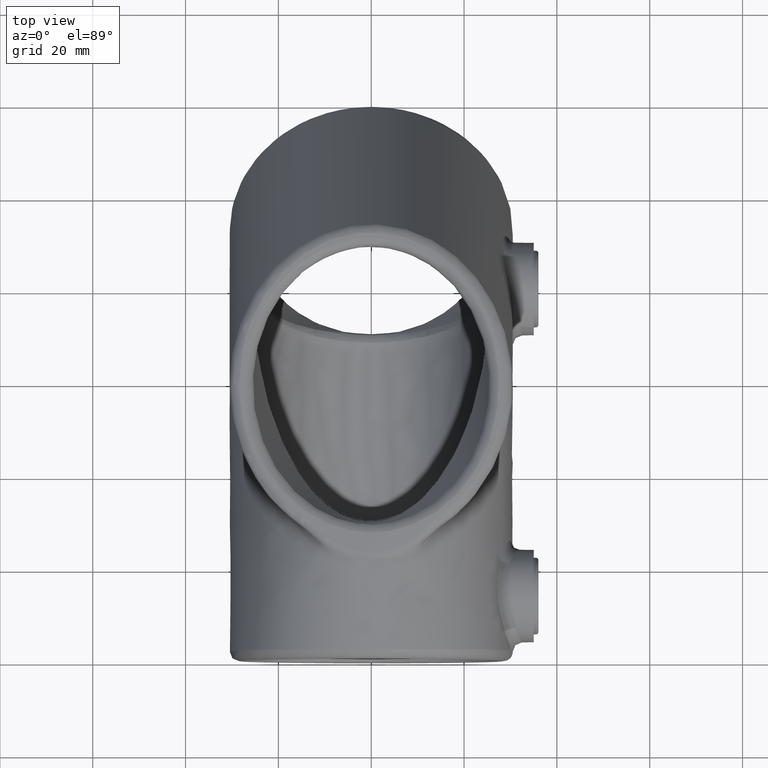
[diagram: clean part render]
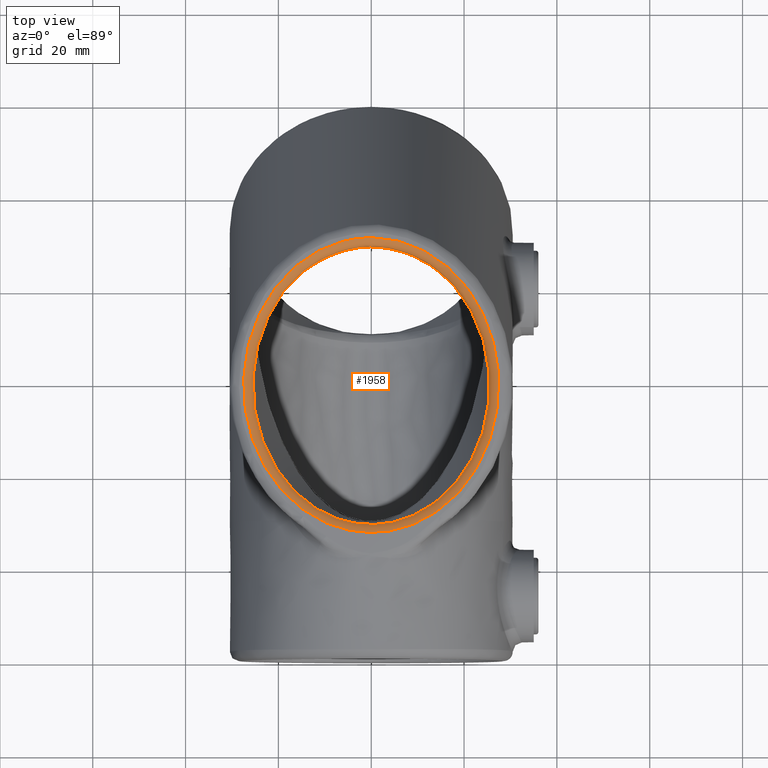
[diagram: same view with one face highlighted and labeled with its STEP entity id]
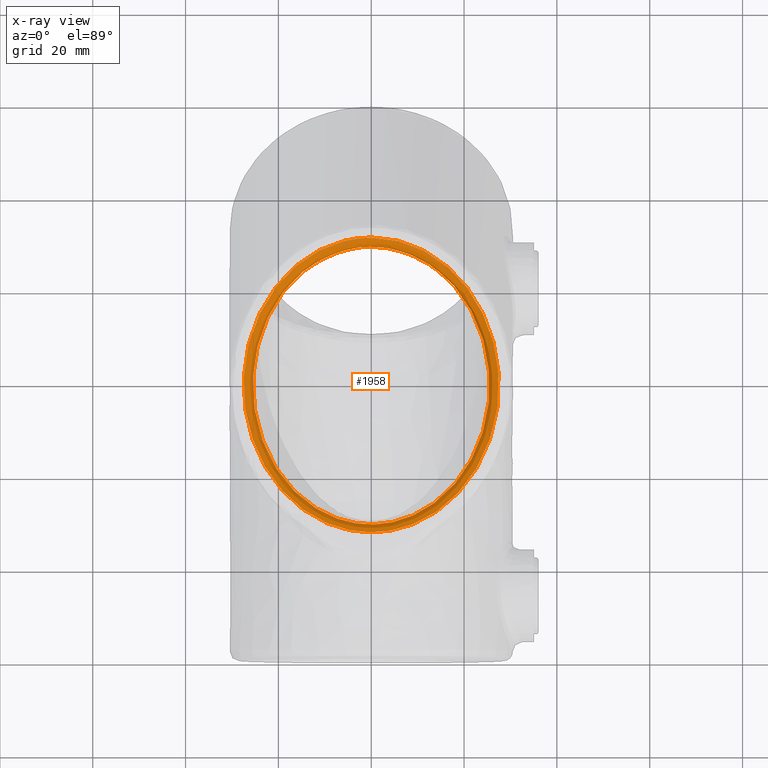
[diagram: x-ray of the same camera — body ghosted, the highlighted face saturated]
A machine part, top view. The second image highlights one B-rep face of the part: STEP entity #1958.
The next image is the same camera in x-ray: the body ghosted, the highlighted face saturated — about 0% of this face is hidden behind the body in this view.
In plain terms, the highlighted face is a freeform B-spline surface patch.
Its self-contained STEP definition (entity closure, byte-faithful):
#141 = CARTESIAN_POINT ( 'NONE',  ( -3.122849337825749433E-15, 28.91412011995177167, -1.000000000000017319 ) ) ;
#178 = CARTESIAN_POINT ( 'NONE',  ( 1.668971096851765479, 28.91412011995177522, -1.000000000000012879 ) ) ;
#202 = CARTESIAN_POINT ( 'NONE',  ( -22.92024049114473527, 45.63195376713254348, -1.556848793642921835 ) ) ;
#232 = ORIENTED_EDGE ( 'NONE', *, *, #1621, .F. ) ;
#234 = CARTESIAN_POINT ( 'NONE',  ( -1.712604328122768305, 28.33676985076215971, -3.903127820947815962E-15 ) ) ;
#255 = CARTESIAN_POINT ( 'NONE',  ( 6.112804511280184094, 86.42865672372977315, 2.168404344971008868E-14 ) ) ;
#266 = CARTESIAN_POINT ( 'NONE',  ( -24.47087517746098584, 49.21091966146155272, 2.222754243480547755E-13 ) ) ;
#297 = CARTESIAN_POINT ( 'NONE',  ( -25.56439616710522245, 57.00301860796106013, -1.734723475976807094E-15 ) ) ;
#317 = CARTESIAN_POINT ( 'NONE',  ( 12.77934219112677638, 84.99056009758599828, -2.867831599018243249 ) ) ;
#324 = CARTESIAN_POINT ( 'NONE',  ( -27.49999999999999645, 61.01464588898686969, -1.734723475976807094E-15 ) ) ;
#379 = CARTESIAN_POINT ( 'NONE',  ( 12.18665817477045188, 87.47811395940088630, -1.734723475976807094E-15 ) ) ;
#392 = CARTESIAN_POINT ( 'NONE',  ( -27.32273258325528786, 63.09290627082167191, -1.734723475976807094E-15 ) ) ;
#448 = CARTESIAN_POINT ( 'NONE',  ( -1.668971096851732394, 88.95854811567261322, -2.999999999999992450 ) ) ;
#474 = CARTESIAN_POINT ( 'NONE',  ( 22.92024049114782969, 72.24071446848329003, -2.443151206357191185 ) ) ;
#483 = CARTESIAN_POINT ( 'NONE',  ( -10.55562367113744671, 84.66135789842277859, 1.597744436266156873E-12 ) ) ;
#503 = CARTESIAN_POINT ( 'NONE',  ( 20.71813732405074404, 79.92040174654142959, -1.734723475976807094E-15 ) ) ;
#533 = CARTESIAN_POINT ( 'NONE',  ( 23.86536897296999271, 74.85000533252687660, -1.734723475976807094E-15 ) ) ;
#564 = CARTESIAN_POINT ( 'NONE',  ( 14.72485980152987928, 81.91886504723777307, -1.572444949309023543E-11 ) ) ;
#668 = CARTESIAN_POINT ( 'NONE',  ( 23.25593552771970352, 45.51769048947110008, 1.966435388305351620E-12 ) ) ;
#704 = CARTESIAN_POINT ( 'NONE',  ( 22.12970577493557300, 43.89068133298911079, -1.498849325839885616 ) ) ;
#750 = ORIENTED_EDGE ( 'NONE', *, *, #7263, .F. ) ;
#813 =( BOUNDED_CURVE ( )  B_SPLINE_CURVE ( 3, ( #1152, #6948, #7016, #3452, #1932, #8419, #5544 ),
 .UNSPECIFIED., .T., .T. ) 
 B_SPLINE_CURVE_WITH_KNOTS ( ( 4, 3, 4 ),
 ( 0.000000000000000000, 3.141592653589793116, 6.283185307179586232 ),
 .UNSPECIFIED. ) 
 CURVE ( )  GEOMETRIC_REPRESENTATION_ITEM ( )  RATIONAL_B_SPLINE_CURVE ( ( 1.000000000000000000, 0.3333333333333333703, 0.3333333333333333703, 1.000000000000000000, 0.3333333333333333703, 0.3333333333333333703, 1.000000000000000000 ) ) 
 REPRESENTATION_ITEM ( '' )  );
#868 = CARTESIAN_POINT ( 'NONE',  ( -27.49999999999999645, 56.85802234663762533, -1.734723475976807094E-15 ) ) ;
#893 = CARTESIAN_POINT ( 'NONE',  ( 3.599697077269617740, 27.38676009395372901, -1.734723475976807094E-15 ) ) ;
#928 = CARTESIAN_POINT ( 'NONE',  ( -24.68442454154497412, 51.15209736044060662, -1.740717431501660917 ) ) ;
#951 = CARTESIAN_POINT ( 'NONE',  ( 0.000000000000000000, 88.95854811567261322, -2.999999999999992450 ) ) ;
#961 = CARTESIAN_POINT ( 'NONE',  ( -11.58270027588904405, 31.47216771974544258, -2.017924791458244403E-13 ) ) ;
#989 = CARTESIAN_POINT ( 'NONE',  ( -26.09546787610236152, 48.70461277739439510, -1.734723475976807094E-15 ) ) ;
#1055 = CARTESIAN_POINT ( 'NONE',  ( -19.21136370048217401, 78.77581623951991219, -2.660826750588807688 ) ) ;
#1085 = CARTESIAN_POINT ( 'NONE',  ( -19.55792023931902435, 76.82271379902422836, -1.734723475976807292E-15 ) ) ;
#1152 = CARTESIAN_POINT ( 'NONE',  ( 0.000000000000000000, 90.69059892324149530, -1.734723475976807094E-15 ) ) ;
#1173 = CARTESIAN_POINT ( 'NONE',  ( 11.30035576206079284, 85.92128960441169738, -2.898832960435999251 ) ) ;
#1214 = CARTESIAN_POINT ( 'NONE',  ( -3.066783968423436146, 87.06927968849561239, 2.168404344971008868E-14 ) ) ;
#1264 = CARTESIAN_POINT ( 'NONE',  ( 19.21136370048069963, 78.77581623952217171, -2.660826750589736278 ) ) ;
#1275 = CARTESIAN_POINT ( 'NONE',  ( -11.98533070116530652, 83.85963811686492875, -2.085646427105824993E-12 ) ) ;
#1298 = CARTESIAN_POINT ( 'NONE',  ( 26.62045783892351025, 50.70300677828289793, -1.734723475976807094E-15 ) ) ;
#1330 = CARTESIAN_POINT ( 'NONE',  ( 11.58270027589071383, 31.47216771974227356, 2.011419578423329105E-13 ) ) ;
#1342 = CARTESIAN_POINT ( 'NONE',  ( -50.99999999999998579, 28.91412011995178588, -1.000000000000017542 ) ) ;
#1362 = CARTESIAN_POINT ( 'NONE',  ( 6.611705496627195089, 29.87433113738984503, -1.031983351311971386 ) ) ;
#1402 = CARTESIAN_POINT ( 'NONE',  ( 22.48916911786342254, 43.73598998115554082, 6.505213034913027590E-16 ) ) ;
#1436 = CARTESIAN_POINT ( 'NONE',  ( 19.59730601752361778, 38.82564364010487878, -2.145466636798874890E-13 ) ) ;
#1608 = CARTESIAN_POINT ( 'NONE',  ( -19.21136370048241204, 39.09685199610409256, -1.339173249410061217 ) ) ;
#1621 = EDGE_CURVE ( 'NONE', #5027, #5027, #1726, .T. ) ;
#1640 = CARTESIAN_POINT ( 'NONE',  ( -7.130270633617430853, 28.19767711928783882, -1.734723475976807094E-15 ) ) ;
#1669 = CARTESIAN_POINT ( 'NONE',  ( -26.62045783891879225, 50.70300677828278424, -1.734723475976807094E-15 ) ) ;
#1699 = CARTESIAN_POINT ( 'NONE',  ( 3.337900926195380258, 29.10764594979990605, -1.006446087881592621 ) ) ;
#1726 =( BOUNDED_CURVE ( )  B_SPLINE_CURVE ( 3, ( #5715, #2158, #1342, #141, #5201, #8080, #5853 ),
 .UNSPECIFIED., .T., .T. ) 
 B_SPLINE_CURVE_WITH_KNOTS ( ( 4, 3, 4 ),
 ( 0.000000000000000000, 3.141592653589793116, 6.283185307179586232 ),
 .UNSPECIFIED. ) 
 CURVE ( )  GEOMETRIC_REPRESENTATION_ITEM ( )  RATIONAL_B_SPLINE_CURVE ( ( 1.000000000000000000, 0.3333333333333333703, 0.3333333333333333703, 1.000000000000000000, 0.3333333333333333703, 0.3333333333333333703, 1.000000000000000000 ) ) 
 REPRESENTATION_ITEM ( '' )  );
#1731 = VERTEX_POINT ( 'NONE', #1751 ) ;
#1733 = CARTESIAN_POINT ( 'NONE',  ( 7.130270633617473486, 28.19767711928784948, -1.734723475976807094E-15 ) ) ;
#1751 = CARTESIAN_POINT ( 'NONE',  ( 0.000000000000000000, 90.69059892324149530, -1.734723475976807094E-15 ) ) ;
#1763 = CARTESIAN_POINT ( 'NONE',  ( -18.17273564121106944, 82.85957844011147699, -1.734723475976807094E-15 ) ) ;
#1793 = CARTESIAN_POINT ( 'NONE',  ( -16.77471927662545781, 84.18439220957230873, -1.734723475976807094E-15 ) ) ;
#1821 = CARTESIAN_POINT ( 'NONE',  ( -12.77934219112567682, 84.99056009758723462, -2.867831599018907163 ) ) ;
#1888 = CARTESIAN_POINT ( 'NONE',  ( -24.68442454154140009, 66.72057087520464336, -2.259282568498474308 ) ) ;
#1913 = CARTESIAN_POINT ( 'NONE',  ( 22.12970577493506141, 73.98198690263677690, -2.501150674161162879 ) ) ;
#1932 = CARTESIAN_POINT ( 'NONE',  ( -54.99999999999999289, 27.18206931238288604, -1.734723475976807094E-15 ) ) ;
#1958 = ADVANCED_FACE ( 'NONE', ( #7331, #7213 ), #6503, .T. ) ;
#1963 = CARTESIAN_POINT ( 'NONE',  ( 0.000000000000000000, 90.69059892324149530, -1.734723475976807094E-15 ) ) ;
#1985 = CARTESIAN_POINT ( 'NONE',  ( 25.33562475902083122, 62.86618415339412280, -2.130898075534350511 ) ) ;
#1996 = CARTESIAN_POINT ( 'NONE',  ( -7.612806789708509214, 85.95251035942183648, -1.600266624602610071E-12 ) ) ;
#2045 = CARTESIAN_POINT ( 'NONE',  ( 16.77471927662428186, 84.18439220957402824, -1.734723475976807094E-15 ) ) ;
#2077 = CARTESIAN_POINT ( 'NONE',  ( 16.85108214003319205, 36.31799403128017900, -1.246613188216018075 ) ) ;
#2158 = CARTESIAN_POINT ( 'NONE',  ( -50.99999999999998579, 88.95854811567262743, -2.999999999999986233 ) ) ;
#2180 = CARTESIAN_POINT ( 'NONE',  ( 18.17273564121107299, 35.01308979552041478, -1.734723475976807094E-15 ) ) ;
#2381 = CARTESIAN_POINT ( 'NONE',  ( 3.337900926197475915, 88.76502228582153009, -2.993553912114137017 ) ) ;
#2388 = CARTESIAN_POINT ( 'NONE',  ( -8.216499288558830827, 30.44747153781843707, -1.051073895415029824 ) ) ;
#2438 = CARTESIAN_POINT ( 'NONE',  ( 1.799870790722454039, 90.69059892324149530, -1.734723475976807094E-15 ) ) ;
#2449 = CARTESIAN_POINT ( 'NONE',  ( 1.712604328122774744, 28.33676985076215971, -3.903127820947815962E-15 ) ) ;
#2476 = CARTESIAN_POINT ( 'NONE',  ( -8.860930605309643937, 28.80388331205065811, -1.734723475976807094E-15 ) ) ;
#2502 = CARTESIAN_POINT ( 'NONE',  ( -15.55473969287407954, 82.80722540456720537, -2.795107625586168876 ) ) ;
#2561 = CARTESIAN_POINT ( 'NONE',  ( -25.43346141807392513, 60.93396966389911285, -1.734723475976806897E-15 ) ) ;
#2590 = CARTESIAN_POINT ( 'NONE',  ( -21.53063765513199712, 73.72692955452779984, -1.734723475976807094E-15 ) ) ;
#2609 = CARTESIAN_POINT ( 'NONE',  ( 8.216499288558784642, 87.42519669780691061, -2.948926104586560015 ) ) ;
#2701 = CARTESIAN_POINT ( 'NONE',  ( 27.32273258325774279, 63.09290627083612435, -1.734723475976807094E-15 ) ) ;
#2737 = CARTESIAN_POINT ( 'NONE',  ( 25.46405501459832976, 55.02421469461374670, -2.053027542856273538E-12 ) ) ;
#2772 = CARTESIAN_POINT ( 'NONE',  ( 24.19761566692995913, 49.26270666868865789, -1.677784341627468701 ) ) ;
#2872 = CARTESIAN_POINT ( 'NONE',  ( 23.86536897296638671, 43.02266290309538732, -1.734723475976807094E-15 ) ) ;
#2905 = CARTESIAN_POINT ( 'NONE',  ( 13.09274336967868990, 32.43481266052643264, -1.734723475976806700E-15 ) ) ;
#3101 = CARTESIAN_POINT ( 'NONE',  ( -16.85108214003153293, 36.31799403127875081, -1.246613188216863177 ) ) ;
#3118 = CARTESIAN_POINT ( 'NONE',  ( 0.000000000000000000, 88.95854811567262743, -2.999999999999986233 ) ) ;
#3130 = CARTESIAN_POINT ( 'NONE',  ( -3.599697077269575107, 27.38676009395371835, -1.734723475976807094E-15 ) ) ;
#3165 = CARTESIAN_POINT ( 'NONE',  ( -20.27524445249429874, 40.62309004952449243, -1.390010208121684521 ) ) ;
#3195 = CARTESIAN_POINT ( 'NONE',  ( -24.91272782098454286, 51.13122579947479096, -6.411232997669844787E-12 ) ) ;
#3224 = CARTESIAN_POINT ( 'NONE',  ( -22.12970577493091895, 73.98198690264507604, -2.501150674163131082 ) ) ;
#3281 = CARTESIAN_POINT ( 'NONE',  ( -25.33562475902335365, 62.86618415337910903, -2.130898075533781633 ) ) ;
#3338 = CARTESIAN_POINT ( 'NONE',  ( 7.612806789710123034, 85.95251035943199724, 4.026687413628615852E-13 ) ) ;
#3349 = CARTESIAN_POINT ( 'NONE',  ( -22.39588507167545472, 72.06197885365793354, -3.607829451369905679E-12 ) ) ;
#3406 = CARTESIAN_POINT ( 'NONE',  ( 26.09546787610007001, 69.16805545823081047, -1.734723475976807094E-15 ) ) ;
#3438 = CARTESIAN_POINT ( 'NONE',  ( 25.56439616710167329, 57.00301860796841424, -1.734723475976807094E-15 ) ) ;
#3450 = CARTESIAN_POINT ( 'NONE',  ( -6.112804511281577646, 86.42865672373211794, 2.168404344971007921E-14 ) ) ;
#3452 = CARTESIAN_POINT ( 'NONE',  ( 3.367778697655220913E-15, 27.18206931238289314, -1.734723475976807094E-15 ) ) ;
#3469 = CARTESIAN_POINT ( 'NONE',  ( 25.49999999999999645, 56.97138480688018802, -1.934550153061095568 ) ) ;
#3481 = CARTESIAN_POINT ( 'NONE',  ( -6.611705496627155121, 87.99833709823430183, -2.968016648687586745 ) ) ;
#3536 = CARTESIAN_POINT ( 'NONE',  ( 8.216499288560859426, 30.44747153782076765, -1.051073895417397264 ) ) ;
#3572 = CARTESIAN_POINT ( 'NONE',  ( 26.09546787610006291, 48.70461277739355666, -1.734723475976807094E-15 ) ) ;
#3606 = CARTESIAN_POINT ( 'NONE',  ( 15.55473969287127467, 35.06544283105366588, -1.204892374411505873 ) ) ;
#3635 = CARTESIAN_POINT ( 'NONE',  ( 11.30035576205878733, 31.95137863120947586, -1.101167039560053906 ) ) ;
#3801 = CARTESIAN_POINT ( 'NONE',  ( -17.22422078823975156, 35.97376369326601520, 2.074735470027089835E-13 ) ) ;
#3861 = CARTESIAN_POINT ( 'NONE',  ( -12.77934219112616709, 32.88210813803932098, -1.132168400984181700 ) ) ;
#3884 = CARTESIAN_POINT ( 'NONE',  ( 0.000000000000000000, 90.69059892324149530, -1.734723475976807094E-15 ) ) ;
#3894 = CARTESIAN_POINT ( 'NONE',  ( -21.86545970366982417, 39.56655673789460081, -1.734723475976807094E-15 ) ) ;
#3928 = CARTESIAN_POINT ( 'NONE',  ( -25.46405501461146770, 55.02421469461822312, 6.598421510883109626E-12 ) ) ;
#4039 = CARTESIAN_POINT ( 'NONE',  ( -20.71813732404914887, 79.92040174653753581, -1.734723475976807094E-15 ) ) ;
#4094 = CARTESIAN_POINT ( 'NONE',  ( 18.17273564120936769, 82.85957844010775375, -1.734723475976807094E-15 ) ) ;
#4103 = CARTESIAN_POINT ( 'NONE',  ( -1.538071403154100070, 87.22649730810377378, -8.673617379884035472E-16 ) ) ;
#4124 = CARTESIAN_POINT ( 'NONE',  ( 24.68442454154391541, 66.72057087518970775, -2.259282568497908095 ) ) ;
#4154 = CARTESIAN_POINT ( 'NONE',  ( 16.85108214003322757, 81.55467420434381154, -2.753386811783348431 ) ) ;
#4162 = EDGE_LOOP ( 'NONE', ( #232 ) ) ;
#4192 = CARTESIAN_POINT ( 'NONE',  ( 27.32273258325415810, 54.77976196478832094, -1.734723475976807094E-15 ) ) ;
#4256 = CARTESIAN_POINT ( 'NONE',  ( 8.860930605309718544, 28.80388331205388752, -1.734723475976807094E-15 ) ) ;
#4292 = CARTESIAN_POINT ( 'NONE',  ( 20.71813732404900676, 37.95226648907915745, -1.734723475976807094E-15 ) ) ;
#4326 = CARTESIAN_POINT ( 'NONE',  ( 16.77471927662593387, 33.68827602605038152, -1.734723475976807094E-15 ) ) ;
#4525 = CARTESIAN_POINT ( 'NONE',  ( -23.86536897297013127, 43.02266290309271568, -1.734723475976807094E-15 ) ) ;
#4547 = CARTESIAN_POINT ( 'NONE',  ( 3.599697077270103129, 90.48590814167253882, -1.734723475976807094E-15 ) ) ;
#4555 = CARTESIAN_POINT ( 'NONE',  ( -22.12970577493547708, 43.89068133298849972, -1.498849325839125335 ) ) ;
#4583 = CARTESIAN_POINT ( 'NONE',  ( -15.55473969287350755, 35.06544283105495907, -1.204892374410749145 ) ) ;
#4607 = CARTESIAN_POINT ( 'NONE',  ( 6.611705496625062572, 87.99833709823751349, -2.968016648692308745 ) ) ;
#4616 = CARTESIAN_POINT ( 'NONE',  ( -24.19761566693086507, 49.26270666869085346, -1.677784341626909148 ) ) ;
#4638 = CARTESIAN_POINT ( 'NONE',  ( 1.668971096851730396, 88.95854811567261322, -2.999999999999992450 ) ) ;
#4649 = CARTESIAN_POINT ( 'NONE',  ( -1.799870790722484903, 27.18206931238289314, -1.734723475976807094E-15 ) ) ;
#4681 = CARTESIAN_POINT ( 'NONE',  ( -21.86545970366984193, 78.30611149772283852, -1.734723475976807094E-15 ) ) ;
#4714 = CARTESIAN_POINT ( 'NONE',  ( -26.09546787610238994, 69.16805545822991519, -1.734723475976807094E-15 ) ) ;
#4824 = CARTESIAN_POINT ( 'NONE',  ( 18.44435372331642498, 78.24010671459004129, -4.158781702235394565E-13 ) ) ;
#4883 = CARTESIAN_POINT ( 'NONE',  ( 16.02792506693115371, 80.79646666412945422, 4.275034450897332188E-13 ) ) ;
#4918 = CARTESIAN_POINT ( 'NONE',  ( 24.91272782099627037, 51.13122579947191326, 1.984451442584813837E-12 ) ) ;
#4927 = CARTESIAN_POINT ( 'NONE',  ( 0.000000000000000000, 87.22649730810377378, -8.673617379884035472E-16 ) ) ;
#5011 = CARTESIAN_POINT ( 'NONE',  ( 17.22422078824686764, 35.97376369326651968, 2.070398661336331946E-13 ) ) ;
#5027 = VERTEX_POINT ( 'NONE', #3118 ) ;
#5048 = CARTESIAN_POINT ( 'NONE',  ( 19.21136370048069963, 39.09685199610259332, -1.339173249410904099 ) ) ;
#5201 = CARTESIAN_POINT ( 'NONE',  ( 50.99999999999998579, 28.91412011995176456, -1.000000000000017097 ) ) ;
#5237 = CARTESIAN_POINT ( 'NONE',  ( -3.337900926194585338, 29.10764594979976749, -1.006446087881666118 ) ) ;
#5272 = CARTESIAN_POINT ( 'NONE',  ( -1.668971096851759484, 28.91412011995177522, -1.000000000000012879 ) ) ;
#5328 = CARTESIAN_POINT ( 'NONE',  ( -24.71790641201837602, 44.86439336228661290, -1.734723475976807094E-15 ) ) ;
#5391 = CARTESIAN_POINT ( 'NONE',  ( -20.27524445249889240, 77.24957818609067317, -2.609989791876066167 ) ) ;
#5417 = CARTESIAN_POINT ( 'NONE',  ( -25.49999999999999289, 60.90128342873704526, -2.065449846938911094 ) ) ;
#5447 = CARTESIAN_POINT ( 'NONE',  ( -22.92024049114696993, 72.24071446848549272, -2.443151206356843463 ) ) ;
#5469 = CARTESIAN_POINT ( 'NONE',  ( 7.130270633616949461, 89.67499111633466669, -1.734723475976807094E-15 ) ) ;
#5508 = CARTESIAN_POINT ( 'NONE',  ( -7.130270633616706988, 89.67499111633654252, -1.734723475976807094E-15 ) ) ;
#5539 = CARTESIAN_POINT ( 'NONE',  ( -8.860930605309716768, 89.06878492357371613, -1.734723475976807094E-15 ) ) ;
#5544 = CARTESIAN_POINT ( 'NONE',  ( 0.000000000000000000, 90.69059892324149530, -1.734723475976807094E-15 ) ) ;
#5563 = CARTESIAN_POINT ( 'NONE',  ( 24.39061213502059644, 66.69314496092601985, -4.111431922471465864E-12 ) ) ;
#5596 = CARTESIAN_POINT ( 'NONE',  ( 27.49999999999999645, 56.85802234663758270, -1.734723475976807094E-15 ) ) ;
#5632 = CARTESIAN_POINT ( 'NONE',  ( 15.55473969287294089, 82.80722540456848435, -2.795107625586835454 ) ) ;
#5639 = CARTESIAN_POINT ( 'NONE',  ( -3.337900926195451312, 88.76502228582474174, -2.993553912118859017 ) ) ;
#5664 = CARTESIAN_POINT ( 'NONE',  ( 24.19761566692779908, 68.60996156694201886, -2.322215658372984493 ) ) ;
#5703 = CARTESIAN_POINT ( 'NONE',  ( 20.65830675088095703, 40.39496464895773897, 6.505213034913025618E-16 ) ) ;
#5715 = CARTESIAN_POINT ( 'NONE',  ( 0.000000000000000000, 88.95854811567262743, -2.999999999999986233 ) ) ;
#5776 = CARTESIAN_POINT ( 'NONE',  ( 20.27524445249425611, 40.62309004952396663, -1.390010208120926238 ) ) ;
#5853 = CARTESIAN_POINT ( 'NONE',  ( 0.000000000000000000, 88.95854811567262743, -2.999999999999986233 ) ) ;
#5948 = CARTESIAN_POINT ( 'NONE',  ( -15.91202073525645488, 34.68135606284801753, -4.140374415885292576E-13 ) ) ;
#5978 = CARTESIAN_POINT ( 'NONE',  ( -6.611705496627910961, 29.87433113738996582, -1.031983351311897223 ) ) ;
#6008 = CARTESIAN_POINT ( 'NONE',  ( -3.428749047321534515, 28.53737549944743535, -1.976913605271462618E-13 ) ) ;
#6039 = CARTESIAN_POINT ( 'NONE',  ( -18.17273564121110141, 35.01308979551371436, -1.734723475976807094E-15 ) ) ;
#6076 = CARTESIAN_POINT ( 'NONE',  ( -25.50000000000000000, 56.97138480688744266, -1.934550153061097788 ) ) ;
#6253 = CARTESIAN_POINT ( 'NONE',  ( 25.43346141807758443, 60.93396966389207137, -1.734723475976807094E-15 ) ) ;
#6266 = CARTESIAN_POINT ( 'NONE',  ( -3.599697077270417989, 90.48590814167066299, -1.734723475976807094E-15 ) ) ;
#6321 = CARTESIAN_POINT ( 'NONE',  ( 21.53063765513058314, 73.72692955453295838, -3.826022676697116343E-12 ) ) ;
#6331 = CARTESIAN_POINT ( 'NONE',  ( -8.216499288562328474, 87.42519669780338631, -2.948926104583361685 ) ) ;
#6350 = CARTESIAN_POINT ( 'NONE',  ( 25.19115420255857885, 62.88822403295205987, 3.964353405055799100E-12 ) ) ;
#6360 = CARTESIAN_POINT ( 'NONE',  ( -11.30035576205731473, 85.92128960441520746, -2.898832960439197137 ) ) ;
#6449 = CARTESIAN_POINT ( 'NONE',  ( 6.784812326538583349, 29.32838329580176406, 1.952799647814402190E-13 ) ) ;
#6503 =( BOUNDED_SURFACE ( )  B_SPLINE_SURFACE ( 3, 2, ( 
 ( #951, #7475, #3884 ),
 ( #4638, #8872, #2438 ),
 ( #2381, #8901, #4547 ),
 ( #4607, #255, #5469 ),
 ( #2609, #3338, #9092 ),
 ( #1173, #8968, #379 ),
 ( #317, #8474, #9198 ),
 ( #5632, #564, #2045 ),
 ( #4154, #4883, #4094 ),
 ( #1264, #4824, #503 ),
 ( #7032, #6968, #9130 ),
 ( #1913, #6321, #533 ),
 ( #474, #8539, #8503 ),
 ( #5664, #7726, #3406 ),
 ( #4124, #5563, #9257 ),
 ( #1985, #6350, #2701 ),
 ( #7790, #6253, #7760 ),
 ( #3469, #3438, #5596 ),
 ( #7064, #2737, #4192 ),
 ( #9227, #4918, #1298 ),
 ( #2772, #7917, #3572 ),
 ( #7192, #668, #7224 ),
 ( #704, #1402, #2872 ),
 ( #5776, #5703, #7889 ),
 ( #5048, #1436, #4292 ),
 ( #2077, #5011, #2180 ),
 ( #3606, #8633, #4326 ),
 ( #9359, #2905, #7947 ),
 ( #3635, #1330, #7124 ),
 ( #3536, #8568, #4256 ),
 ( #1362, #6449, #1733 ),
 ( #1699, #7489, #893 ),
 ( #178, #2449, #6792 ),
 ( #5272, #234, #4649 ),
 ( #5237, #6008, #3130 ),
 ( #5978, #6676, #1640 ),
 ( #2388, #8176, #2476 ),
 ( #6702, #961, #7392 ),
 ( #3861, #7420, #8881 ),
 ( #4583, #5948, #8122 ),
 ( #3101, #3801, #6039 ),
 ( #1608, #8820, #6764 ),
 ( #3165, #8147, #3894 ),
 ( #4555, #7528, #4525 ),
 ( #202, #8914, #5328 ),
 ( #4616, #266, #989 ),
 ( #928, #3195, #1669 ),
 ( #8230, #3928, #8947 ),
 ( #6076, #297, #868 ),
 ( #5417, #2561, #324 ),
 ( #3281, #6941, #392 ),
 ( #1888, #7643, #7672 ),
 ( #8262, #6915, #4714 ),
 ( #5447, #3349, #8325 ),
 ( #3224, #2590, #8354 ),
 ( #5391, #1085, #4681 ),
 ( #1055, #9105, #4039 ),
 ( #6822, #9066, #1763 ),
 ( #2502, #8980, #1793 ),
 ( #1821, #1275, #7076 ),
 ( #6360, #483, #7770 ),
 ( #6331, #1996, #5539 ),
 ( #3481, #3450, #5508 ),
 ( #5639, #1214, #6266 ),
 ( #448, #4103, #7043 ),
 ( #8549, #4927, #1963 ) ),
 .UNSPECIFIED., .T., .F., .F. ) 
 B_SPLINE_SURFACE_WITH_KNOTS ( ( 4, 2, 2, 2, 2, 2, 2, 2, 2, 2, 2, 2, 2, 2, 2, 2, 2, 2, 2, 2, 2, 2, 2, 2, 2, 2, 2, 2, 2, 2, 2, 2, 4 ),
 ( 3, 3 ),
 ( 0.000000000000000000, 0.1963495408493620697, 0.3926990816987241395, 0.5890486225480862092, 0.7853981633974482790, 0.9817477042468103487, 1.178097245096172418, 1.374446785945534488, 1.570796326794896558, 1.767145867644258628, 1.963495408493620697, 2.159844949342982545, 2.356194490192344837, 2.552544031041707129, 2.748893571891068976, 2.945243112740430824, 3.141592653589793116, 3.337942194439155408, 3.534291735288517255, 3.730641276137879103, 3.926990816987241395, 4.123340357836603687, 4.319689898685965090, 4.516039439535327382, 4.712388980384689674, 4.908738521234051966, 5.105088062083414258, 5.301437602932775661, 5.497787143782137953, 5.694136684631500245, 5.890486225480861648, 6.086835766330223940, 6.283185307179586232 ),
 ( 0.000000000000000000, 1.000000000000000000 ),
 .UNSPECIFIED. ) 
 GEOMETRIC_REPRESENTATION_ITEM ( )  RATIONAL_B_SPLINE_SURFACE ( (
 ( 1.000000000000000000, 0.5000000000000025535, 1.000000000000000000),
 ( 1.000000000000000000, 0.5000000000000025535, 1.000000000000000000),
 ( 1.000000000000000000, 0.5016188989069439996, 1.000000000000000000),
 ( 1.000000000000000000, 0.5079427483423754053, 1.000000000000000000),
 ( 1.000000000000000000, 0.5126450122641416085, 1.000000000000000000),
 ( 1.000000000000000000, 0.5247172520816941743, 1.000000000000000000),
 ( 1.000000000000000000, 0.5320834700477328205, 1.000000000000000000),
 ( 1.000000000000000000, 0.5489023706076607834, 1.000000000000000000),
 ( 1.000000000000000000, 0.5583518928191989472, 1.000000000000000000),
 ( 1.000000000000000000, 0.5787027315561913410, 1.000000000000000000),
 ( 1.000000000000000000, 0.5896021494677878838, 1.000000000000000000),
 ( 1.000000000000000000, 0.6122421694772253176, 1.000000000000000000),
 ( 1.000000000000000000, 0.6239819672171398324, 1.000000000000000000),
 ( 1.000000000000000000, 0.6477556502318817522, 1.000000000000000000),
 ( 1.000000000000000000, 0.6597893956506105662, 1.000000000000000000),
 ( 1.000000000000000000, 0.6836798738095705152, 1.000000000000000000),
 ( 1.000000000000000000, 0.6955367735365753923, 1.000000000000000000),
 ( 1.000000000000000000, 0.7186767888365195311, 1.000000000000000000),
 ( 1.000000000000000000, 0.7299601663650967520, 1.000000000000000000),
 ( 1.000000000000000000, 0.7516235545282341501, 1.000000000000000000),
 ( 1.000000000000000000, 0.7620038215747242383, 1.000000000000000000),
 ( 1.000000000000000000, 0.7815905008963979217, 1.000000000000000000),
 ( 1.000000000000000000, 0.7907971268463090952, 1.000000000000000000),
 ( 1.000000000000000000, 0.8078179716122265708, 1.000000000000000000),
 ( 1.000000000000000000, 0.8156323541561385504, 1.000000000000000000),
 ( 1.000000000000000000, 0.8296964218599318652, 1.000000000000000000),
 ( 1.000000000000000000, 0.8359462253278491239, 1.000000000000000000),
 ( 1.000000000000000000, 0.8467508990241647826, 1.000000000000000000),
 ( 1.000000000000000000, 0.8513058497094102561, 1.000000000000000000),
 ( 1.000000000000000000, 0.8586296848974573903, 1.000000000000000000),
 ( 1.000000000000000000, 0.8613986189280670169, 1.000000000000000000),
 ( 1.000000000000000000, 0.8650964666146691018, 1.000000000000000000),
 ( 1.000000000000000000, 0.8660254037844373753, 1.000000000000000000),
 ( 1.000000000000000000, 0.8660254037844373753, 1.000000000000000000),
 ( 1.000000000000000000, 0.8650964666147697990, 1.000000000000000000),
 ( 1.000000000000000000, 0.8613986189279665417, 1.000000000000000000),
 ( 1.000000000000000000, 0.8586296848974578344, 1.000000000000000000),
 ( 1.000000000000000000, 0.8513058497094107002, 1.000000000000000000),
 ( 1.000000000000000000, 0.8467508990240595335, 1.000000000000000000),
 ( 1.000000000000000000, 0.8359462253279538180, 1.000000000000000000),
 ( 1.000000000000000000, 0.8296964218596080132, 1.000000000000000000),
 ( 1.000000000000000000, 0.8156323541564621804, 1.000000000000000000),
 ( 1.000000000000000000, 0.8078179716123333742, 1.000000000000000000),
 ( 1.000000000000000000, 0.7907971268462031800, 1.000000000000000000),
 ( 1.000000000000000000, 0.7815905008967836132, 1.000000000000000000),
 ( 1.000000000000000000, 0.7620038215743395460, 1.000000000000000000),
 ( 1.000000000000000000, 0.7516235545296506837, 1.000000000000000000),
 ( 1.000000000000000000, 0.7299601663636799964, 1.000000000000000000),
 ( 1.000000000000000000, 0.7186767888364038459, 1.000000000000000000),
 ( 1.000000000000000000, 0.6955367735366904114, 1.000000000000000000),
 ( 1.000000000000000000, 0.6836798738104056250, 1.000000000000000000),
 ( 1.000000000000000000, 0.6597893956497761225, 1.000000000000000000),
 ( 1.000000000000000000, 0.6477556502311202502, 1.000000000000000000),
 ( 1.000000000000000000, 0.6239819672179017784, 1.000000000000000000),
 ( 1.000000000000000000, 0.6122421694764839106, 1.000000000000000000),
 ( 1.000000000000000000, 0.5896021494685297348, 1.000000000000000000),
 ( 1.000000000000000000, 0.5787027315561242835, 1.000000000000000000),
 ( 1.000000000000000000, 0.5583518928192660047, 1.000000000000000000),
 ( 1.000000000000000000, 0.5489023706044148243, 1.000000000000000000),
 ( 1.000000000000000000, 0.5320834700509864401, 1.000000000000000000),
 ( 1.000000000000000000, 0.5247172520815143182, 1.000000000000000000),
 ( 1.000000000000000000, 0.5126450122643143592, 1.000000000000000000),
 ( 1.000000000000000000, 0.5079427483437687352, 1.000000000000000000),
 ( 1.000000000000000000, 0.5016188989055511138, 1.000000000000000000),
 ( 1.000000000000000000, 0.5000000000000025535, 1.000000000000000000),
 ( 1.000000000000000000, 0.5000000000000025535, 1.000000000000000000) ) ) 
 REPRESENTATION_ITEM ( '' )  SURFACE ( )  );
#6676 = CARTESIAN_POINT ( 'NONE',  ( -6.784812326539527483, 29.32838329580179959, 1.950631243469661150E-13 ) ) ;
#6702 = CARTESIAN_POINT ( 'NONE',  ( -11.30035576206067738, 31.95137863121173893, -1.101167039562418237 ) ) ;
#6764 = CARTESIAN_POINT ( 'NONE',  ( -20.71813732404903519, 37.95226648908594314, -1.734723475976807094E-15 ) ) ;
#6792 = CARTESIAN_POINT ( 'NONE',  ( 1.799870790722491787, 27.18206931238289314, -1.734723475976807094E-15 ) ) ;
#6822 = CARTESIAN_POINT ( 'NONE',  ( -16.85108214003184202, 81.55467420434594317, -2.753386811784273913 ) ) ;
#6915 = CARTESIAN_POINT ( 'NONE',  ( -23.82091207487885498, 68.54084928923978737, 3.472010478873882837E-12 ) ) ;
#6941 = CARTESIAN_POINT ( 'NONE',  ( -25.19115420255886661, 62.88822403293919194, -1.734723475976807094E-15 ) ) ;
#6948 = CARTESIAN_POINT ( 'NONE',  ( 54.99999999999999289, 90.69059892324149530, -1.734723475976807094E-15 ) ) ;
#6968 = CARTESIAN_POINT ( 'NONE',  ( 19.55792023931800827, 76.82271379902280728, 3.969401330385454281E-12 ) ) ;
#7016 = CARTESIAN_POINT ( 'NONE',  ( 54.99999999999999289, 27.18206931238290736, -1.734723475976807094E-15 ) ) ;
#7032 = CARTESIAN_POINT ( 'NONE',  ( 20.27524445249474638, 77.24957818609898652, -2.609989791878035703 ) ) ;
#7043 = CARTESIAN_POINT ( 'NONE',  ( -1.799870790722455816, 90.69059892324149530, -1.734723475976807094E-15 ) ) ;
#7064 = CARTESIAN_POINT ( 'NONE',  ( 25.33562475902058608, 55.00648408222973273, -1.869101924467109654 ) ) ;
#7076 = CARTESIAN_POINT ( 'NONE',  ( -13.78164353945270726, 86.49368851949735415, -1.734723475976807094E-15 ) ) ;
#7124 = CARTESIAN_POINT ( 'NONE',  ( 12.18665817477029201, 30.39455427621127726, -1.734723475976807094E-15 ) ) ;
#7142 = EDGE_LOOP ( 'NONE', ( #750 ) ) ;
#7192 = CARTESIAN_POINT ( 'NONE',  ( 22.92024049114564832, 45.63195376713477458, -1.556848793642363837 ) ) ;
#7213 = FACE_OUTER_BOUND ( 'NONE', #4162, .T. ) ;
#7224 = CARTESIAN_POINT ( 'NONE',  ( 24.71790641202069594, 44.86439336228750108, -1.734723475976807094E-15 ) ) ;
#7263 = EDGE_CURVE ( 'NONE', #1731, #1731, #813, .T. ) ;
#7331 = FACE_OUTER_BOUND ( 'NONE', #7142, .T. ) ;
#7392 = CARTESIAN_POINT ( 'NONE',  ( -12.18665817477021740, 30.39455427621443917, -1.734723475976807094E-15 ) ) ;
#7420 = CARTESIAN_POINT ( 'NONE',  ( -13.09274336967522423, 32.43481266052628342, 4.057378615214328891E-13 ) ) ;
#7475 = CARTESIAN_POINT ( 'NONE',  ( 0.000000000000000000, 87.22649730810377378, -8.673617379884035472E-16 ) ) ;
#7489 = CARTESIAN_POINT ( 'NONE',  ( 3.428749047322165122, 28.53737549944740337, -1.974745200926719054E-13 ) ) ;
#7528 = CARTESIAN_POINT ( 'NONE',  ( -22.48916911786499284, 43.73598998115384973, -1.951563910473907981E-15 ) ) ;
#7643 = CARTESIAN_POINT ( 'NONE',  ( -24.39061213501929615, 66.69314496094406763, -1.734723475976807094E-15 ) ) ;
#7672 = CARTESIAN_POINT ( 'NONE',  ( -26.62045783892239115, 67.16966145735590032, -1.734723475976807094E-15 ) ) ;
#7726 = CARTESIAN_POINT ( 'NONE',  ( 23.82091207487590623, 68.54084928924378062, -1.734723475976807094E-15 ) ) ;
#7760 = CARTESIAN_POINT ( 'NONE',  ( 27.49999999999999645, 61.01464588898681285, -1.734723475976807094E-15 ) ) ;
#7770 = CARTESIAN_POINT ( 'NONE',  ( -12.18665817477029023, 87.47811395940993862, -1.734723475976807094E-15 ) ) ;
#7790 = CARTESIAN_POINT ( 'NONE',  ( 25.49999999999999645, 60.90128342874420753, -2.065449846938908873 ) ) ;
#7889 = CARTESIAN_POINT ( 'NONE',  ( 21.86545970367361846, 39.56655673789201444, -1.734723475976807094E-15 ) ) ;
#7917 = CARTESIAN_POINT ( 'NONE',  ( 24.47087517746135532, 49.21091966146640573, -2.015223968691225787E-12 ) ) ;
#7947 = CARTESIAN_POINT ( 'NONE',  ( 13.78164353945222231, 31.37897971612872183, -1.734723475976807094E-15 ) ) ;
#8080 = CARTESIAN_POINT ( 'NONE',  ( 50.99999999999998579, 88.95854811567262743, -2.999999999999986233 ) ) ;
#8122 = CARTESIAN_POINT ( 'NONE',  ( -16.77471927662753615, 33.68827602605035310, -1.734723475976807094E-15 ) ) ;
#8147 = CARTESIAN_POINT ( 'NONE',  ( -20.65830675087961055, 40.39496464895973560, -1.951563910473907981E-15 ) ) ;
#8176 = CARTESIAN_POINT ( 'NONE',  ( -8.431329526124724083, 29.92206401197272214, 1.979120977200642893E-13 ) ) ;
#8230 = CARTESIAN_POINT ( 'NONE',  ( -25.33562475901976185, 55.00648408222431129, -1.869101924466089359 ) ) ;
#8262 = CARTESIAN_POINT ( 'NONE',  ( -24.19761566692867660, 68.60996156693974513, -2.322215658373329550 ) ) ;
#8325 = CARTESIAN_POINT ( 'NONE',  ( -24.71790641201840444, 73.00827487333771160, -1.734723475976807094E-15 ) ) ;
#8354 = CARTESIAN_POINT ( 'NONE',  ( -23.86536897297014548, 74.85000533253857213, -1.734723475976807094E-15 ) ) ;
#8419 = CARTESIAN_POINT ( 'NONE',  ( -54.99999999999999289, 90.69059892324149530, -1.734723475976807094E-15 ) ) ;
#8474 = CARTESIAN_POINT ( 'NONE',  ( 11.98533070113630572, 83.85963811687165048, 1.625321024559680341E-11 ) ) ;
#8503 = CARTESIAN_POINT ( 'NONE',  ( 24.71790641202070660, 73.00827487333687316, -1.734723475976807094E-15 ) ) ;
#8539 = CARTESIAN_POINT ( 'NONE',  ( 22.39588507167674081, 72.06197885365814670, -1.734723475976807292E-15 ) ) ;
#8549 = CARTESIAN_POINT ( 'NONE',  ( 0.000000000000000000, 88.95854811567261322, -2.999999999999992450 ) ) ;
#8568 = CARTESIAN_POINT ( 'NONE',  ( 8.431329526123201745, 29.92206401197594090, -1.985626190235554658E-13 ) ) ;
#8633 = CARTESIAN_POINT ( 'NONE',  ( 15.91202073525336758, 34.68135606284818095, -1.734723475976807094E-15 ) ) ;
#8820 = CARTESIAN_POINT ( 'NONE',  ( -19.59730601752997003, 38.82564364010435298, -2.141129828108089233E-13 ) ) ;
#8872 = CARTESIAN_POINT ( 'NONE',  ( 1.538071403154098293, 87.22649730810377378, -8.673617379884035472E-16 ) ) ;
#8881 = CARTESIAN_POINT ( 'NONE',  ( -13.78164353945054543, 31.37897971612869341, -1.734723475976807094E-15 ) ) ;
#8901 = CARTESIAN_POINT ( 'NONE',  ( 3.066783968433246077, 87.06927968849620925, 2.168404344971008552E-14 ) ) ;
#8914 = CARTESIAN_POINT ( 'NONE',  ( -23.25593552772064498, 45.51769048947761576, -2.201311708707310568E-13 ) ) ;
#8947 = CARTESIAN_POINT ( 'NONE',  ( -27.32273258325886545, 54.77976196478830673, -1.734723475976807094E-15 ) ) ;
#8968 = CARTESIAN_POINT ( 'NONE',  ( 10.55562367113487632, 84.66135789841337100, -3.968340238505915307E-13 ) ) ;
#8980 = CARTESIAN_POINT ( 'NONE',  ( -14.72485980151807006, 81.91886504723277085, 2.014053539444323076E-12 ) ) ;
#9066 = CARTESIAN_POINT ( 'NONE',  ( -16.02792506693258190, 80.79646666413439959, 4.275034450868511628E-13 ) ) ;
#9092 = CARTESIAN_POINT ( 'NONE',  ( 8.860930605309485841, 89.06878492358278265, -1.734723475976807094E-15 ) ) ;
#9105 = CARTESIAN_POINT ( 'NONE',  ( -18.44435372331539469, 78.24010671458485433, -4.158781702208564711E-13 ) ) ;
#9130 = CARTESIAN_POINT ( 'NONE',  ( 21.86545970366999470, 78.30611149773454827, -1.734723475976807094E-15 ) ) ;
#9198 = CARTESIAN_POINT ( 'NONE',  ( 13.78164353945384590, 86.49368851949567727, -1.734723475976807094E-15 ) ) ;
#9227 = CARTESIAN_POINT ( 'NONE',  ( 24.68442454154416410, 51.15209736043529887, -1.740717431500644619 ) ) ;
#9257 = CARTESIAN_POINT ( 'NONE',  ( 26.62045783891991846, 67.16966145734153315, -1.734723475976807094E-15 ) ) ;
#9359 = CARTESIAN_POINT ( 'NONE',  ( 12.77934219112846925, 32.88210813804065680, -1.132168400983425860 ) ) ;